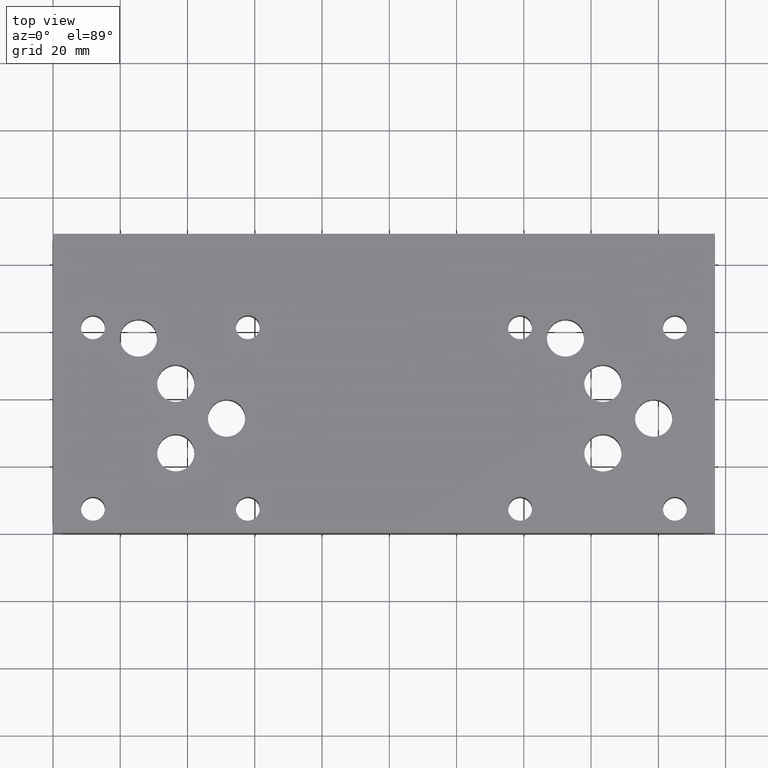
[diagram: clean part render]
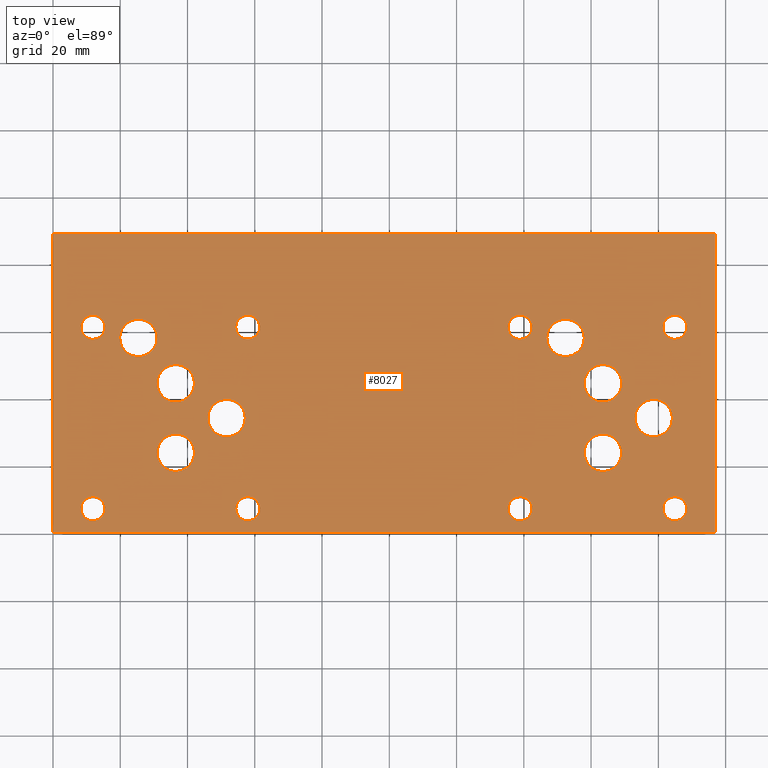
[diagram: same view with one face highlighted and labeled with its STEP entity id]
A machine part, top view. The second image highlights one B-rep face of the part: STEP entity #8027.
In plain terms, the highlighted planar face has unit normal (0, 0, 1).
Its self-contained STEP definition (entity closure, byte-faithful):
#72=CIRCLE('',#8318,5.5626);
#73=CIRCLE('',#8319,5.5626);
#75=CIRCLE('',#8322,5.5626);
#76=CIRCLE('',#8323,5.5626);
#78=CIRCLE('',#8326,5.55625);
#79=CIRCLE('',#8327,5.55625);
#81=CIRCLE('',#8330,5.5626);
#82=CIRCLE('',#8331,5.5626);
#84=CIRCLE('',#8334,5.5626);
#85=CIRCLE('',#8335,5.5626);
#87=CIRCLE('',#8338,5.55625);
#88=CIRCLE('',#8339,5.55625);
#90=CIRCLE('',#8342,5.5626);
#91=CIRCLE('',#8343,5.5626);
#93=CIRCLE('',#8346,5.5626);
#94=CIRCLE('',#8347,5.5626);
#138=CIRCLE('',#8412,3.5687);
#141=CIRCLE('',#8416,3.5687);
#144=CIRCLE('',#8420,3.5687);
#147=CIRCLE('',#8424,3.5687);
#150=CIRCLE('',#8428,3.5687);
#153=CIRCLE('',#8432,3.5687);
#156=CIRCLE('',#8436,3.5687);
#159=CIRCLE('',#8440,3.5687);
#214=FACE_BOUND('',#1333,.T.);
#215=FACE_BOUND('',#1334,.T.);
#216=FACE_BOUND('',#1335,.T.);
#217=FACE_BOUND('',#1336,.T.);
#218=FACE_BOUND('',#1337,.T.);
#219=FACE_BOUND('',#1338,.T.);
#220=FACE_BOUND('',#1339,.T.);
#221=FACE_BOUND('',#1340,.T.);
#222=FACE_BOUND('',#1341,.T.);
#223=FACE_BOUND('',#1342,.T.);
#224=FACE_BOUND('',#1343,.T.);
#225=FACE_BOUND('',#1344,.T.);
#226=FACE_BOUND('',#1345,.T.);
#227=FACE_BOUND('',#1346,.T.);
#228=FACE_BOUND('',#1347,.T.);
#229=FACE_BOUND('',#1348,.T.);
#496=PLANE('',#8453);
#895=FACE_OUTER_BOUND('',#1332,.T.);
#1332=EDGE_LOOP('',(#7139,#7140,#7141,#7142));
#1333=EDGE_LOOP('',(#7143));
#1334=EDGE_LOOP('',(#7144));
#1335=EDGE_LOOP('',(#7145));
#1336=EDGE_LOOP('',(#7146));
#1337=EDGE_LOOP('',(#7147));
#1338=EDGE_LOOP('',(#7148));
#1339=EDGE_LOOP('',(#7149));
#1340=EDGE_LOOP('',(#7150));
#1341=EDGE_LOOP('',(#7151,#7152));
#1342=EDGE_LOOP('',(#7153,#7154));
#1343=EDGE_LOOP('',(#7155,#7156));
#1344=EDGE_LOOP('',(#7157,#7158));
#1345=EDGE_LOOP('',(#7159,#7160));
#1346=EDGE_LOOP('',(#7161,#7162));
#1347=EDGE_LOOP('',(#7163,#7164));
#1348=EDGE_LOOP('',(#7165,#7166));
#1704=LINE('',#12288,#2477);
#2135=LINE('',#13911,#2908);
#2137=LINE('',#13917,#2910);
#2140=LINE('',#13921,#2913);
#2477=VECTOR('',#8979,10.);
#2908=VECTOR('',#10038,10.);
#2910=VECTOR('',#10044,10.);
#2913=VECTOR('',#10049,10.);
#3482=VERTEX_POINT('',#12285);
#3483=VERTEX_POINT('',#12287);
#3802=VERTEX_POINT('',#13669);
#3803=VERTEX_POINT('',#13670);
#3804=VERTEX_POINT('',#13676);
#3805=VERTEX_POINT('',#13677);
#3806=VERTEX_POINT('',#13683);
#3807=VERTEX_POINT('',#13684);
#3808=VERTEX_POINT('',#13690);
#3809=VERTEX_POINT('',#13691);
#3810=VERTEX_POINT('',#13697);
#3811=VERTEX_POINT('',#13698);
#3812=VERTEX_POINT('',#13704);
#3813=VERTEX_POINT('',#13705);
#3814=VERTEX_POINT('',#13711);
#3815=VERTEX_POINT('',#13712);
#3816=VERTEX_POINT('',#13718);
#3817=VERTEX_POINT('',#13719);
#3860=VERTEX_POINT('',#13839);
#3863=VERTEX_POINT('',#13847);
#3866=VERTEX_POINT('',#13855);
#3869=VERTEX_POINT('',#13863);
#3872=VERTEX_POINT('',#13871);
#3875=VERTEX_POINT('',#13879);
#3878=VERTEX_POINT('',#13887);
#3881=VERTEX_POINT('',#13895);
#3883=VERTEX_POINT('',#13909);
#3885=VERTEX_POINT('',#13916);
#4404=EDGE_CURVE('',#3483,#3482,#1704,.T.);
#4871=EDGE_CURVE('',#3802,#3803,#72,.T.);
#4872=EDGE_CURVE('',#3803,#3802,#73,.T.);
#4875=EDGE_CURVE('',#3804,#3805,#75,.T.);
#4876=EDGE_CURVE('',#3805,#3804,#76,.T.);
#4879=EDGE_CURVE('',#3806,#3807,#78,.T.);
#4880=EDGE_CURVE('',#3807,#3806,#79,.T.);
#4883=EDGE_CURVE('',#3808,#3809,#81,.T.);
#4884=EDGE_CURVE('',#3809,#3808,#82,.T.);
#4887=EDGE_CURVE('',#3810,#3811,#84,.T.);
#4888=EDGE_CURVE('',#3811,#3810,#85,.T.);
#4891=EDGE_CURVE('',#3812,#3813,#87,.T.);
#4892=EDGE_CURVE('',#3813,#3812,#88,.T.);
#4895=EDGE_CURVE('',#3814,#3815,#90,.T.);
#4896=EDGE_CURVE('',#3815,#3814,#91,.T.);
#4899=EDGE_CURVE('',#3816,#3817,#93,.T.);
#4900=EDGE_CURVE('',#3817,#3816,#94,.T.);
#4956=EDGE_CURVE('',#3860,#3860,#138,.T.);
#4960=EDGE_CURVE('',#3863,#3863,#141,.T.);
#4964=EDGE_CURVE('',#3866,#3866,#144,.T.);
#4968=EDGE_CURVE('',#3869,#3869,#147,.T.);
#4972=EDGE_CURVE('',#3872,#3872,#150,.T.);
#4976=EDGE_CURVE('',#3875,#3875,#153,.T.);
#4980=EDGE_CURVE('',#3878,#3878,#156,.T.);
#4984=EDGE_CURVE('',#3881,#3881,#159,.T.);
#4987=EDGE_CURVE('',#3482,#3883,#2135,.T.);
#4989=EDGE_CURVE('',#3885,#3483,#2137,.T.);
#4992=EDGE_CURVE('',#3883,#3885,#2140,.T.);
#7139=ORIENTED_EDGE('',*,*,#4992,.T.);
#7140=ORIENTED_EDGE('',*,*,#4989,.T.);
#7141=ORIENTED_EDGE('',*,*,#4404,.T.);
#7142=ORIENTED_EDGE('',*,*,#4987,.T.);
#7143=ORIENTED_EDGE('',*,*,#4956,.T.);
#7144=ORIENTED_EDGE('',*,*,#4960,.T.);
#7145=ORIENTED_EDGE('',*,*,#4964,.T.);
#7146=ORIENTED_EDGE('',*,*,#4968,.T.);
#7147=ORIENTED_EDGE('',*,*,#4972,.T.);
#7148=ORIENTED_EDGE('',*,*,#4976,.T.);
#7149=ORIENTED_EDGE('',*,*,#4980,.T.);
#7150=ORIENTED_EDGE('',*,*,#4984,.T.);
#7151=ORIENTED_EDGE('',*,*,#4871,.T.);
#7152=ORIENTED_EDGE('',*,*,#4872,.T.);
#7153=ORIENTED_EDGE('',*,*,#4891,.T.);
#7154=ORIENTED_EDGE('',*,*,#4892,.T.);
#7155=ORIENTED_EDGE('',*,*,#4879,.T.);
#7156=ORIENTED_EDGE('',*,*,#4880,.T.);
#7157=ORIENTED_EDGE('',*,*,#4895,.T.);
#7158=ORIENTED_EDGE('',*,*,#4896,.T.);
#7159=ORIENTED_EDGE('',*,*,#4887,.T.);
#7160=ORIENTED_EDGE('',*,*,#4888,.T.);
#7161=ORIENTED_EDGE('',*,*,#4883,.T.);
#7162=ORIENTED_EDGE('',*,*,#4884,.T.);
#7163=ORIENTED_EDGE('',*,*,#4875,.T.);
#7164=ORIENTED_EDGE('',*,*,#4876,.T.);
#7165=ORIENTED_EDGE('',*,*,#4899,.T.);
#7166=ORIENTED_EDGE('',*,*,#4900,.T.);
#8027=ADVANCED_FACE('',(#895,#214,#215,#216,#217,#218,#219,#220,#221,#222,
#223,#224,#225,#226,#227,#228,#229),#496,.T.);
#8318=AXIS2_PLACEMENT_3D('',#13671,#9746,#9747);
#8319=AXIS2_PLACEMENT_3D('',#13672,#9748,#9749);
#8322=AXIS2_PLACEMENT_3D('',#13678,#9755,#9756);
#8323=AXIS2_PLACEMENT_3D('',#13679,#9757,#9758);
#8326=AXIS2_PLACEMENT_3D('',#13685,#9764,#9765);
#8327=AXIS2_PLACEMENT_3D('',#13686,#9766,#9767);
#8330=AXIS2_PLACEMENT_3D('',#13692,#9773,#9774);
#8331=AXIS2_PLACEMENT_3D('',#13693,#9775,#9776);
#8334=AXIS2_PLACEMENT_3D('',#13699,#9782,#9783);
#8335=AXIS2_PLACEMENT_3D('',#13700,#9784,#9785);
#8338=AXIS2_PLACEMENT_3D('',#13706,#9791,#9792);
#8339=AXIS2_PLACEMENT_3D('',#13707,#9793,#9794);
#8342=AXIS2_PLACEMENT_3D('',#13713,#9800,#9801);
#8343=AXIS2_PLACEMENT_3D('',#13714,#9802,#9803);
#8346=AXIS2_PLACEMENT_3D('',#13720,#9809,#9810);
#8347=AXIS2_PLACEMENT_3D('',#13721,#9811,#9812);
#8412=AXIS2_PLACEMENT_3D('',#13841,#9953,#9954);
#8416=AXIS2_PLACEMENT_3D('',#13849,#9962,#9963);
#8420=AXIS2_PLACEMENT_3D('',#13857,#9971,#9972);
#8424=AXIS2_PLACEMENT_3D('',#13865,#9980,#9981);
#8428=AXIS2_PLACEMENT_3D('',#13873,#9989,#9990);
#8432=AXIS2_PLACEMENT_3D('',#13881,#9998,#9999);
#8436=AXIS2_PLACEMENT_3D('',#13889,#10007,#10008);
#8440=AXIS2_PLACEMENT_3D('',#13897,#10016,#10017);
#8453=AXIS2_PLACEMENT_3D('',#13922,#10050,#10051);
#8979=DIRECTION('',(-1.,0.,0.));
#9746=DIRECTION('center_axis',(0.,0.,-1.));
#9747=DIRECTION('ref_axis',(1.,0.,0.));
#9748=DIRECTION('center_axis',(0.,0.,-1.));
#9749=DIRECTION('ref_axis',(1.,0.,0.));
#9755=DIRECTION('center_axis',(0.,0.,-1.));
#9756=DIRECTION('ref_axis',(1.,0.,0.));
#9757=DIRECTION('center_axis',(0.,0.,-1.));
#9758=DIRECTION('ref_axis',(1.,0.,0.));
#9764=DIRECTION('center_axis',(0.,0.,-1.));
#9765=DIRECTION('ref_axis',(1.,0.,0.));
#9766=DIRECTION('center_axis',(0.,0.,-1.));
#9767=DIRECTION('ref_axis',(1.,0.,0.));
#9773=DIRECTION('center_axis',(0.,0.,-1.));
#9774=DIRECTION('ref_axis',(1.,0.,0.));
#9775=DIRECTION('center_axis',(0.,0.,-1.));
#9776=DIRECTION('ref_axis',(1.,0.,0.));
#9782=DIRECTION('center_axis',(0.,0.,-1.));
#9783=DIRECTION('ref_axis',(1.,0.,0.));
#9784=DIRECTION('center_axis',(0.,0.,-1.));
#9785=DIRECTION('ref_axis',(1.,0.,0.));
#9791=DIRECTION('center_axis',(0.,0.,-1.));
#9792=DIRECTION('ref_axis',(1.,0.,0.));
#9793=DIRECTION('center_axis',(0.,0.,-1.));
#9794=DIRECTION('ref_axis',(1.,0.,0.));
#9800=DIRECTION('center_axis',(0.,0.,-1.));
#9801=DIRECTION('ref_axis',(1.,0.,0.));
#9802=DIRECTION('center_axis',(0.,0.,-1.));
#9803=DIRECTION('ref_axis',(1.,0.,0.));
#9809=DIRECTION('center_axis',(0.,0.,-1.));
#9810=DIRECTION('ref_axis',(1.,0.,0.));
#9811=DIRECTION('center_axis',(0.,0.,-1.));
#9812=DIRECTION('ref_axis',(1.,0.,0.));
#9953=DIRECTION('center_axis',(0.,0.,-1.));
#9954=DIRECTION('ref_axis',(1.,0.,0.));
#9962=DIRECTION('center_axis',(0.,0.,-1.));
#9963=DIRECTION('ref_axis',(1.,0.,0.));
#9971=DIRECTION('center_axis',(0.,0.,-1.));
#9972=DIRECTION('ref_axis',(1.,0.,0.));
#9980=DIRECTION('center_axis',(0.,0.,-1.));
#9981=DIRECTION('ref_axis',(1.,0.,0.));
#9989=DIRECTION('center_axis',(0.,0.,-1.));
#9990=DIRECTION('ref_axis',(1.,0.,0.));
#9998=DIRECTION('center_axis',(0.,0.,-1.));
#9999=DIRECTION('ref_axis',(1.,0.,0.));
#10007=DIRECTION('center_axis',(0.,0.,-1.));
#10008=DIRECTION('ref_axis',(1.,0.,0.));
#10016=DIRECTION('center_axis',(0.,0.,-1.));
#10017=DIRECTION('ref_axis',(1.,0.,0.));
#10038=DIRECTION('',(0.,-1.,0.));
#10044=DIRECTION('',(0.,1.,0.));
#10049=DIRECTION('',(1.,0.,0.));
#10050=DIRECTION('center_axis',(0.,0.,1.));
#10051=DIRECTION('ref_axis',(1.,0.,0.));
#12285=CARTESIAN_POINT('',(0.,88.9,25.4));
#12287=CARTESIAN_POINT('',(196.85,88.9,25.4));
#12288=CARTESIAN_POINT('',(196.85,88.9,25.4));
#13669=CARTESIAN_POINT('',(169.0878,44.4246,25.4));
#13670=CARTESIAN_POINT('',(157.9626,44.4246,25.4));
#13671=CARTESIAN_POINT('Origin',(163.5252,44.4246,25.4));
#13672=CARTESIAN_POINT('Origin',(163.5252,44.4246,25.4));
#13676=CARTESIAN_POINT('',(184.1754,34.1122,25.4));
#13677=CARTESIAN_POINT('',(173.0502,34.1122,25.4));
#13678=CARTESIAN_POINT('Origin',(178.6128,34.1122,25.4));
#13679=CARTESIAN_POINT('Origin',(178.6128,34.1122,25.4));
#13683=CARTESIAN_POINT('',(42.06875,44.42968,25.4));
#13684=CARTESIAN_POINT('',(30.95625,44.42968,25.4));
#13685=CARTESIAN_POINT('Origin',(36.5125,44.42968,25.4));
#13686=CARTESIAN_POINT('Origin',(36.5125,44.42968,25.4));
#13690=CARTESIAN_POINT('',(57.1754,34.1122,25.4));
#13691=CARTESIAN_POINT('',(46.0502,34.1122,25.4));
#13692=CARTESIAN_POINT('Origin',(51.6128,34.1122,25.4));
#13693=CARTESIAN_POINT('Origin',(51.6128,34.1122,25.4));
#13697=CARTESIAN_POINT('',(30.9626,57.9374,25.4));
#13698=CARTESIAN_POINT('',(19.8374,57.9374,25.4));
#13699=CARTESIAN_POINT('Origin',(25.4,57.9374,25.4));
#13700=CARTESIAN_POINT('Origin',(25.4,57.9374,25.4));
#13704=CARTESIAN_POINT('',(42.07383,23.79472,25.4));
#13705=CARTESIAN_POINT('',(30.96133,23.79472,25.4));
#13706=CARTESIAN_POINT('Origin',(36.51758,23.79472,25.4));
#13707=CARTESIAN_POINT('Origin',(36.51758,23.79472,25.4));
#13711=CARTESIAN_POINT('',(157.9626,57.9374,25.4));
#13712=CARTESIAN_POINT('',(146.8374,57.9374,25.4));
#13713=CARTESIAN_POINT('Origin',(152.4,57.9374,25.4));
#13714=CARTESIAN_POINT('Origin',(152.4,57.9374,25.4));
#13718=CARTESIAN_POINT('',(169.0878,23.7744,25.4));
#13719=CARTESIAN_POINT('',(157.9626,23.7744,25.4));
#13720=CARTESIAN_POINT('Origin',(163.5252,23.7744,25.4));
#13721=CARTESIAN_POINT('Origin',(163.5252,23.7744,25.4));
#13839=CARTESIAN_POINT('',(181.3433,7.1374,25.4));
#13841=CARTESIAN_POINT('Origin',(184.912,7.1374,25.4));
#13847=CARTESIAN_POINT('',(135.2931,61.1124,25.4));
#13849=CARTESIAN_POINT('Origin',(138.8618,61.1124,25.4));
#13855=CARTESIAN_POINT('',(54.356,7.1374,25.4));
#13857=CARTESIAN_POINT('Origin',(57.9247,7.1374,25.4));
#13863=CARTESIAN_POINT('',(8.3058,61.1124,25.4));
#13865=CARTESIAN_POINT('Origin',(11.8745,61.1124,25.4));
#13871=CARTESIAN_POINT('',(54.356,61.1251,25.4));
#13873=CARTESIAN_POINT('Origin',(57.9247,61.1251,25.4));
#13879=CARTESIAN_POINT('',(8.3185,7.1374,25.4));
#13881=CARTESIAN_POINT('Origin',(11.8872,7.1374,25.4));
#13887=CARTESIAN_POINT('',(181.3433,61.1124,25.4));
#13889=CARTESIAN_POINT('Origin',(184.912,61.1124,25.4));
#13895=CARTESIAN_POINT('',(135.3185,7.1374,25.4));
#13897=CARTESIAN_POINT('Origin',(138.8872,7.1374,25.4));
#13909=CARTESIAN_POINT('',(0.,0.,25.4));
#13911=CARTESIAN_POINT('',(0.,88.9,25.4));
#13916=CARTESIAN_POINT('',(196.85,0.,25.4));
#13917=CARTESIAN_POINT('',(196.85,0.,25.4));
#13921=CARTESIAN_POINT('',(0.,0.,25.4));
#13922=CARTESIAN_POINT('Origin',(98.425,44.45,25.4));